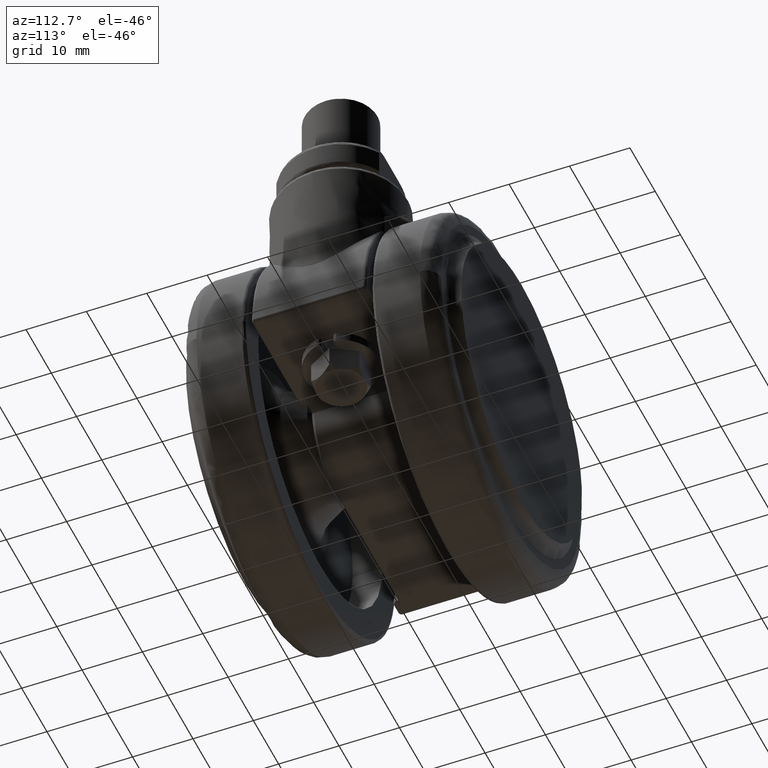
[diagram: clean part render]
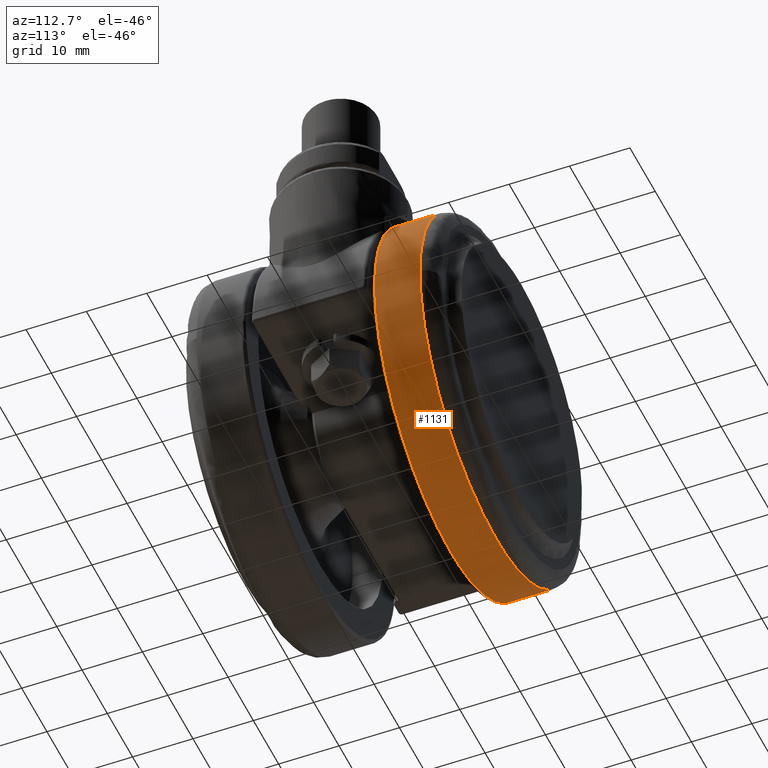
[diagram: same view with one face highlighted and labeled with its STEP entity id]
A machine part, auxiliary view. The second image highlights one B-rep face of the part: STEP entity #1131.
In plain terms, the highlighted face is a freeform B-spline surface patch.
Its self-contained STEP definition (entity closure, byte-faithful):
#906=CARTESIAN_POINT('',(-21.761231919898879,10.999999999927139,-20.650636438821259));
#907=VERTEX_POINT('',#906);
#923=CARTESIAN_POINT('',(1.347067E-015,11.0,-30.0));
#924=VERTEX_POINT('',#923);
#925=CARTESIAN_POINT('',(-21.761231919898893,10.999999999927157,-20.650636438821273));
#926=CARTESIAN_POINT('',(-12.889017858354073,10.999999999970051,-30.000000000000004));
#927=CARTESIAN_POINT('',(1.347067E-015,11.0,-30.0));
#935=(BOUNDED_CURVE()B_SPLINE_CURVE(2,(#925,#926,#927),.UNSPECIFIED.,.F.,.U.)B_SPLINE_CURVE_WITH_KNOTS((3,3),(0.371049520889213,0.500000000000000),.UNSPECIFIED.)CURVE()GEOMETRIC_REPRESENTATION_ITEM()RATIONAL_B_SPLINE_CURVE((0.853699661796709,0.848925116422819,1.0))REPRESENTATION_ITEM(''));
#936=EDGE_CURVE('',#907,#924,#935,.T.);
#938=CARTESIAN_POINT('',(29.990525678498560,10.999999999857030,-0.753902863317287));
#939=VERTEX_POINT('',#938);
#940=CARTESIAN_POINT('',(1.347067E-015,11.0,-30.0));
#941=CARTESIAN_POINT('',(29.255336285402727,10.999999999928511,-30.0));
#942=CARTESIAN_POINT('',(29.990525678498564,10.999999999857028,-0.753902863317287));
#950=(BOUNDED_CURVE()B_SPLINE_CURVE(2,(#940,#941,#942),.UNSPECIFIED.,.F.,.U.)B_SPLINE_CURVE_WITH_KNOTS((3,3),(0.500000000000000,0.745579891769707),.UNSPECIFIED.)CURVE()GEOMETRIC_REPRESENTATION_ITEM()RATIONAL_B_SPLINE_CURVE((1.0,0.712285260094844,0.989826157681350))REPRESENTATION_ITEM(''));
#951=EDGE_CURVE('',#924,#939,#950,.T.);
#1002=CARTESIAN_POINT('',(21.761231919898879,10.999999999927130,20.650636438821259));
#1003=VERTEX_POINT('',#1002);
#1004=CARTESIAN_POINT('',(29.990525678498564,10.999999999857028,-0.753902863317287));
#1005=CARTESIAN_POINT('',(29.999999999999996,10.999999999857900,-0.377010963709973));
#1006=CARTESIAN_POINT('',(30.0,10.999999999858799,-3.289332E-016));
#1007=CARTESIAN_POINT('',(29.999999999999996,10.999999999887317,11.968785714438772));
#1008=CARTESIAN_POINT('',(21.761231919898893,10.999999999927150,20.650636438821273));
#1016=(BOUNDED_CURVE()B_SPLINE_CURVE(2,(#1004,#1005,#1006,#1007,#1008),.UNSPECIFIED.,.F.,.U.)B_SPLINE_CURVE_WITH_KNOTS((3,2,3),(0.745579891769707,0.750000000000000,0.871049520889213),.UNSPECIFIED.)CURVE()GEOMETRIC_REPRESENTATION_ITEM()RATIONAL_B_SPLINE_CURVE((0.989826157681350,0.994821521091703,1.0,0.858181664763729,0.853699661796709))REPRESENTATION_ITEM(''));
#1017=EDGE_CURVE('',#939,#1003,#1016,.T.);
#1051=CARTESIAN_POINT('',(-21.761231130368621,18.687500000279488,-20.650637270812609));
#1052=CARTESIAN_POINT('',(-1.110593859556006,18.687500000279481,-42.411868401181231));
#1053=CARTESIAN_POINT('',(20.650637270812620,18.687500000279481,-21.761231130368621));
#1054=CARTESIAN_POINT('',(42.411868401181231,18.687500000279481,-1.110593859556008));
#1055=CARTESIAN_POINT('',(21.761231130368628,18.687500000279481,20.650637270812609));
#1056=CARTESIAN_POINT('',(-21.761231130368621,10.807812499846470,-20.650637270812609));
#1057=CARTESIAN_POINT('',(-1.110593859556007,10.807812499846467,-42.411868401181231));
#1058=CARTESIAN_POINT('',(20.650637270812609,10.807812499846470,-21.761231130368621));
#1059=CARTESIAN_POINT('',(42.411868401181231,10.807812499846461,-1.110593859556008));
#1060=CARTESIAN_POINT('',(21.761231130368621,10.807812499846460,20.650637270812609));
#1068=(BOUNDED_SURFACE()B_SPLINE_SURFACE(2,1,((#1051,#1056),(#1052,#1057),(#1053,#1058),(#1054,#1059),(#1055,#1060)),.UNSPECIFIED.,.F.,.F.,.U.)B_SPLINE_SURFACE_WITH_KNOTS((3,2,3),(2,2),(0.0,49.705627484771391,99.411254969542782),(0.0,7.879687500433019),.UNSPECIFIED.)GEOMETRIC_REPRESENTATION_ITEM()RATIONAL_B_SPLINE_SURFACE(((1.0,1.0),(0.707106781186548,0.707106781186548),(1.0,1.0),(0.707106781186548,0.707106781186548),(1.0,1.0)))REPRESENTATION_ITEM('')SURFACE());
#1069=ORIENTED_EDGE('',*,*,#936,.F.);
#1070=CARTESIAN_POINT('',(-21.761231910157260,18.500000000139579,-20.650636449086779));
#1071=VERTEX_POINT('',#1070);
#1072=CARTESIAN_POINT('',(-21.761231910157260,18.500000000139579,-20.650636449086779));
#1073=CARTESIAN_POINT('',(-21.761231919898879,10.999999999927139,-20.650636438821259));
#1074=QUASI_UNIFORM_CURVE('',1,(#1072,#1073),.UNSPECIFIED.,.F.,.U.);
#1075=EDGE_CURVE('',#1071,#907,#1074,.T.);
#1076=ORIENTED_EDGE('',*,*,#1075,.F.);
#1077=CARTESIAN_POINT('',(2.265522E-015,18.500000000000000,-30.0));
#1078=VERTEX_POINT('',#1077);
#1079=CARTESIAN_POINT('',(-21.761231910157278,18.500000000139583,-20.650636449086800));
#1080=CARTESIAN_POINT('',(-12.889017849971932,18.500000000057831,-29.999999999999993));
#1081=CARTESIAN_POINT('',(2.265522E-015,18.500000000000000,-30.0));
#1089=(BOUNDED_CURVE()B_SPLINE_CURVE(2,(#1079,#1080,#1081),.UNSPECIFIED.,.F.,.U.)B_SPLINE_CURVE_WITH_KNOTS((3,3),(0.371049520960404,0.500000000000000),.UNSPECIFIED.)CURVE()GEOMETRIC_REPRESENTATION_ITEM()RATIONAL_B_SPLINE_CURVE((0.853699661791437,0.848925116506225,1.0))REPRESENTATION_ITEM(''));
#1090=EDGE_CURVE('',#1071,#1078,#1089,.T.);
#1091=ORIENTED_EDGE('',*,*,#1090,.T.);
#1092=CARTESIAN_POINT('',(30.0,18.500000000269171,-1.416014E-014));
#1093=VERTEX_POINT('',#1092);
#1094=CARTESIAN_POINT('',(2.265522E-015,18.500000000000000,-30.0));
#1095=CARTESIAN_POINT('',(29.999999999999975,18.500000000134591,-30.000000000000004));
#1096=CARTESIAN_POINT('',(29.999999999999996,18.500000000269175,-1.416014E-014));
#1104=(BOUNDED_CURVE()B_SPLINE_CURVE(2,(#1094,#1095,#1096),.UNSPECIFIED.,.F.,.U.)B_SPLINE_CURVE_WITH_KNOTS((3,3),(0.500000000000000,0.750000000000000),.UNSPECIFIED.)CURVE()GEOMETRIC_REPRESENTATION_ITEM()RATIONAL_B_SPLINE_CURVE((1.0,0.707106781186548,1.000000000000000))REPRESENTATION_ITEM(''));
#1105=EDGE_CURVE('',#1078,#1093,#1104,.T.);
#1106=ORIENTED_EDGE('',*,*,#1105,.T.);
#1107=CARTESIAN_POINT('',(21.761231910157271,18.500000000139561,20.650636449086779));
#1108=VERTEX_POINT('',#1107);
#1109=CARTESIAN_POINT('',(30.000000000000011,18.500000000269178,-1.416014E-014));
#1110=CARTESIAN_POINT('',(30.000000000000004,18.500000000215476,11.968785722641076));
#1111=CARTESIAN_POINT('',(21.761231910157274,18.500000000139565,20.650636449086807));
#1119=(BOUNDED_CURVE()B_SPLINE_CURVE(2,(#1109,#1110,#1111),.UNSPECIFIED.,.F.,.U.)B_SPLINE_CURVE_WITH_KNOTS((3,3),(0.750000000000000,0.871049520960404),.UNSPECIFIED.)CURVE()GEOMETRIC_REPRESENTATION_ITEM()RATIONAL_B_SPLINE_CURVE((1.0,0.858181664680323,0.853699661791437))REPRESENTATION_ITEM(''));
#1120=EDGE_CURVE('',#1093,#1108,#1119,.T.);
#1121=ORIENTED_EDGE('',*,*,#1120,.T.);
#1122=CARTESIAN_POINT('',(21.761231910157271,18.500000000139561,20.650636449086779));
#1123=CARTESIAN_POINT('',(21.761231919898879,10.999999999927130,20.650636438821259));
#1124=QUASI_UNIFORM_CURVE('',1,(#1122,#1123),.UNSPECIFIED.,.F.,.U.);
#1125=EDGE_CURVE('',#1108,#1003,#1124,.T.);
#1126=ORIENTED_EDGE('',*,*,#1125,.T.);
#1127=ORIENTED_EDGE('',*,*,#1017,.F.);
#1128=ORIENTED_EDGE('',*,*,#951,.F.);
#1129=EDGE_LOOP('',(#1069,#1076,#1091,#1106,#1121,#1126,#1127,#1128));
#1130=FACE_OUTER_BOUND('',#1129,.T.);
#1131=ADVANCED_FACE('',(#1130),#1068,.T.);